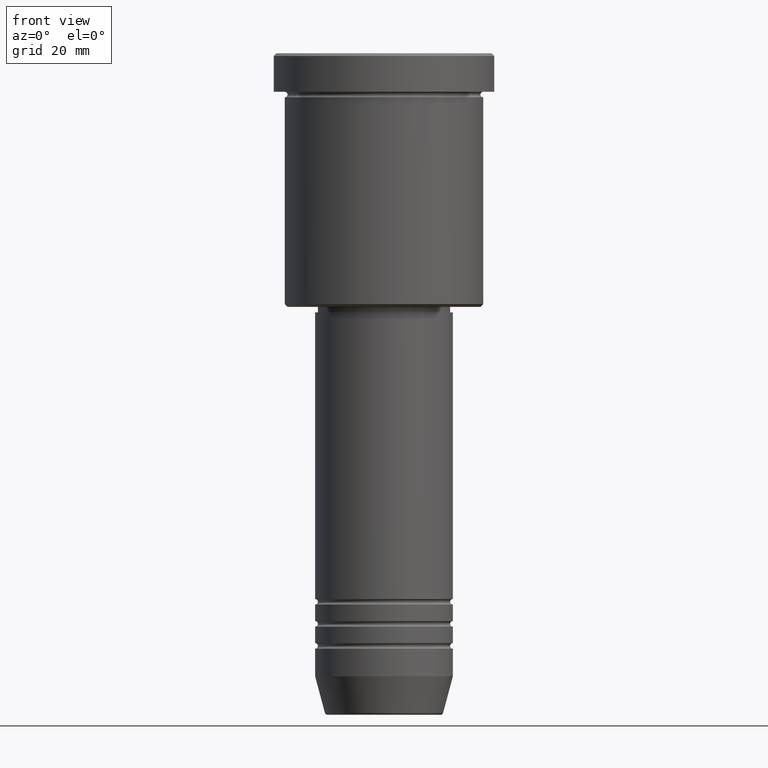
[diagram: clean part render]
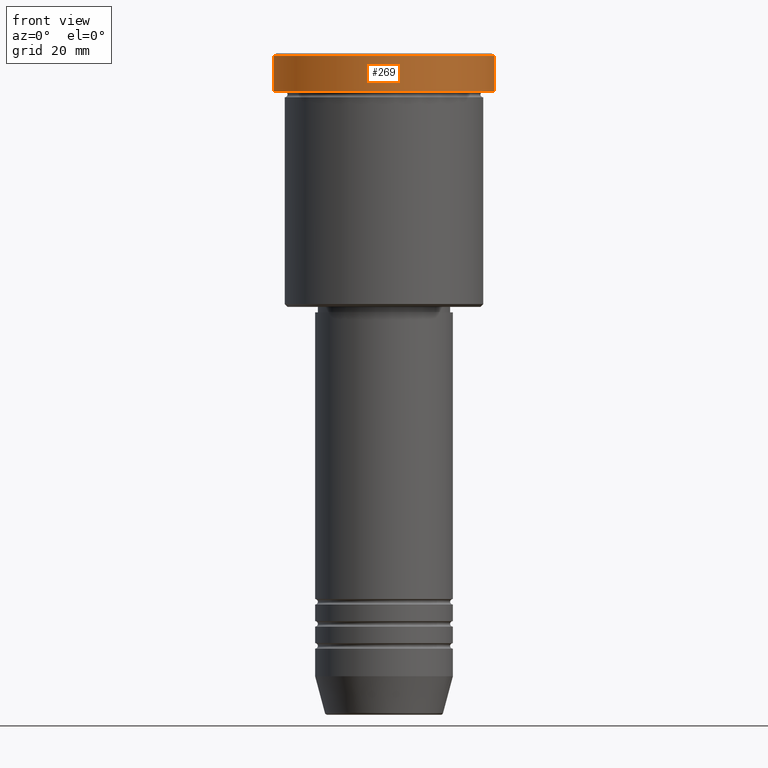
[diagram: same view with one face highlighted and labeled with its STEP entity id]
A machine part, front view. The second image highlights one B-rep face of the part: STEP entity #269.
In plain terms, the highlighted cylindrical surface (partial cylindrical patch) has radius 20 mm, axis along (-0, -0, 1).
Its self-contained STEP definition (entity closure, byte-faithful):
#9 = CYLINDRICAL_SURFACE ( 'NONE', #255, 20.00000000000000000 ) ;
#20 = CARTESIAN_POINT ( 'NONE',  ( 20.00000000000000000, 0.000000000000000000, 0.000000000000000000 ) ) ;
#31 = EDGE_CURVE ( 'NONE', #744, #70, #750, .T. ) ;
#40 = CIRCLE ( 'NONE', #226, 20.00000000000000000 ) ;
#70 = VERTEX_POINT ( 'NONE', #1029 ) ;
#81 = DIRECTION ( 'NONE',  ( 1.000000000000000000, 0.000000000000000000, 0.000000000000000000 ) ) ;
#101 = LINE ( 'NONE', #185, #106 ) ;
#106 = VECTOR ( 'NONE', #915, 1000.000000000000000 ) ;
#136 = AXIS2_PLACEMENT_3D ( 'NONE', #980, #733, #640 ) ;
#185 = CARTESIAN_POINT ( 'NONE',  ( -20.00000000000000000, 2.449293598294706513E-15, 0.000000000000000000 ) ) ;
#189 = DIRECTION ( 'NONE',  ( -0.000000000000000000, -0.000000000000000000, 1.000000000000000000 ) ) ;
#226 = AXIS2_PLACEMENT_3D ( 'NONE', #1093, #378, #648 ) ;
#229 = ORIENTED_EDGE ( 'NONE', *, *, #468, .T. ) ;
#255 = AXIS2_PLACEMENT_3D ( 'NONE', #356, #189, #81 ) ;
#269 = ADVANCED_FACE ( 'NONE', ( #808 ), #9, .T. ) ;
#356 = CARTESIAN_POINT ( 'NONE',  ( 0.000000000000000000, 0.000000000000000000, 0.000000000000000000 ) ) ;
#371 = EDGE_CURVE ( 'NONE', #624, #1056, #101, .T. ) ;
#378 = DIRECTION ( 'NONE',  ( 0.000000000000000000, 0.000000000000000000, -1.000000000000000000 ) ) ;
#417 = ORIENTED_EDGE ( 'NONE', *, *, #31, .T. ) ;
#462 = ORIENTED_EDGE ( 'NONE', *, *, #497, .T. ) ;
#468 = EDGE_CURVE ( 'NONE', #624, #744, #516, .T. ) ;
#497 = EDGE_CURVE ( 'NONE', #70, #1056, #40, .T. ) ;
#516 = CIRCLE ( 'NONE', #136, 20.00000000000000000 ) ;
#624 = VERTEX_POINT ( 'NONE', #1166 ) ;
#640 = DIRECTION ( 'NONE',  ( 1.000000000000000000, 0.000000000000000000, 0.000000000000000000 ) ) ;
#648 = DIRECTION ( 'NONE',  ( 1.000000000000000000, 0.000000000000000000, 0.000000000000000000 ) ) ;
#660 = DIRECTION ( 'NONE',  ( -0.000000000000000000, -0.000000000000000000, 1.000000000000000000 ) ) ;
#733 = DIRECTION ( 'NONE',  ( -0.000000000000000000, -0.000000000000000000, 1.000000000000000000 ) ) ;
#744 = VERTEX_POINT ( 'NONE', #907 ) ;
#750 = LINE ( 'NONE', #20, #981 ) ;
#808 = FACE_OUTER_BOUND ( 'NONE', #1078, .T. ) ;
#859 = ORIENTED_EDGE ( 'NONE', *, *, #371, .F. ) ;
#907 = CARTESIAN_POINT ( 'NONE',  ( 20.00000000000000000, 0.000000000000000000, -6.999999999999995559 ) ) ;
#915 = DIRECTION ( 'NONE',  ( -0.000000000000000000, -0.000000000000000000, 1.000000000000000000 ) ) ;
#980 = CARTESIAN_POINT ( 'NONE',  ( 0.000000000000000000, 0.000000000000000000, -6.999999999999995559 ) ) ;
#981 = VECTOR ( 'NONE', #660, 1000.000000000000000 ) ;
#1015 = CARTESIAN_POINT ( 'NONE',  ( -20.00000000000000000, 2.449293598294706513E-15, -0.5000000000000108802 ) ) ;
#1029 = CARTESIAN_POINT ( 'NONE',  ( 20.00000000000000000, 0.000000000000000000, -0.5000000000000108802 ) ) ;
#1056 = VERTEX_POINT ( 'NONE', #1015 ) ;
#1078 = EDGE_LOOP ( 'NONE', ( #859, #229, #417, #462 ) ) ;
#1093 = CARTESIAN_POINT ( 'NONE',  ( 0.000000000000000000, 0.000000000000000000, -0.5000000000000108802 ) ) ;
#1166 = CARTESIAN_POINT ( 'NONE',  ( -20.00000000000000000, 2.449293598294706513E-15, -6.999999999999995559 ) ) ;